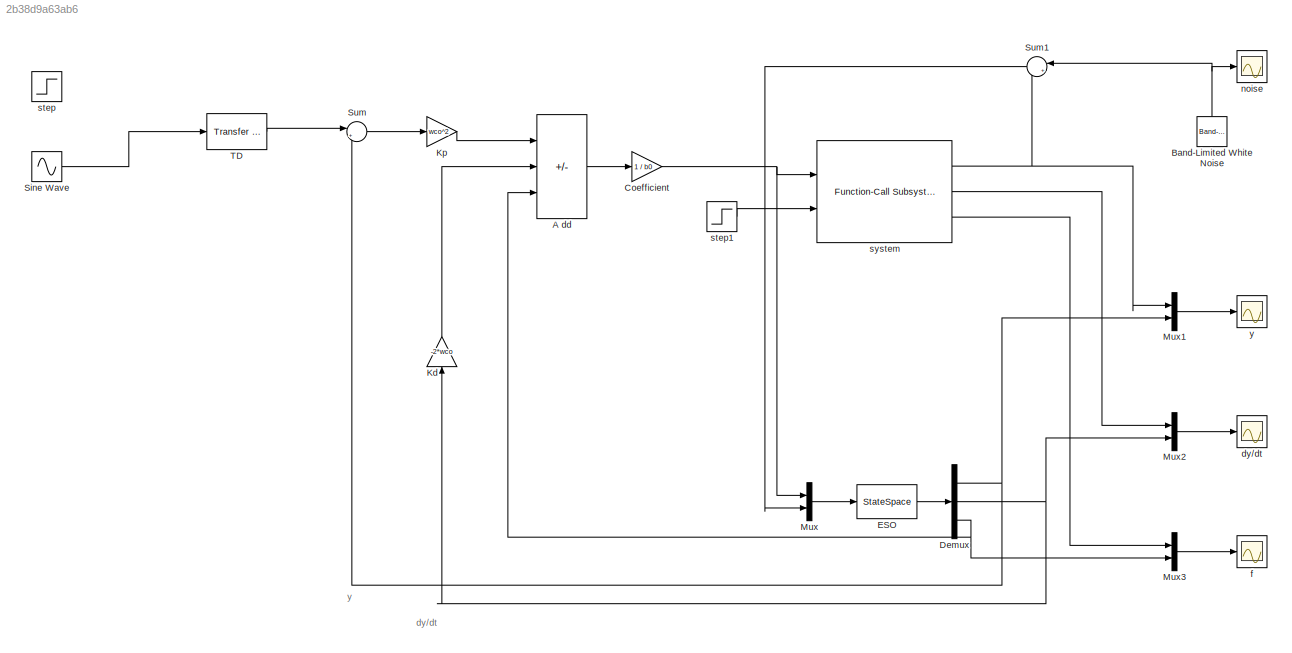
MODEL slx_2b38d9a63ab6
KIND model
CONFIG AbsTol = auto
CONFIG EnableMultiTasking = off
CONFIG FixedStep = 0.01
CONFIG MaxStep = auto
CONFIG MinStep = auto
CONFIG RelTol = 1e-3
CONFIG SampleTimeConstraint = Unconstrained
CONFIG SolverName = FixedStepAuto
CONFIG StartTime = 0.0
CONFIG StopTime = 10.0
WORKSPACE source: mxarray member
WORKSPACE wc = 5
BLOCK [Sum] A dd
  IconShape = rectangular
  Inputs = ++-
  Ports = [3, 1]
BLOCK [Reference] Band-Limited White Noise  REF=simulink/Sources/Band-Limited
White Noise
  NameLocation = right
  Ports = [0, 1]
  SourceBlock = simulink/Sources/Band-Limited\nWhite Noise
  SourceProductBaseCode = SL
  SourceType = Band-Limited White Noise.
BLOCK [Gain] Coefficient
  Gain = 1 / b0
BLOCK [Demux] Demux
  Outputs = 3
  Ports = [1, 3]
BLOCK [StateSpace] ESO
  A = [-3*wco 1 0; -3*wco^2 0 1; -wco^3 0 0]
  B = [0 3*wco; b0 3*wco^2; 0 wco^3]
  C = eye(3)
  D = [0 0; 0 0; 0 0]
  InitialCondition = 0
  Ports = [1, 1]
BLOCK [Gain] Kd
  Gain = -2*wco
  NameLocation = right
BLOCK [Gain] Kp
  Gain = wco^2
BLOCK [Mux] Mux
  DisplayOption = bar
  Inputs = 2
  Ports = [2, 1]
BLOCK [Mux] Mux1
  DisplayOption = bar
  Inputs = 2
  Ports = [2, 1]
BLOCK [Mux] Mux2
  DisplayOption = bar
  Inputs = 2
  Ports = [2, 1]
BLOCK [Mux] Mux3
  DisplayOption = bar
  Inputs = 2
  Ports = [2, 1]
BLOCK [Sin] Sine Wave
  Ports = [0, 1]
  SampleTime = 0
BLOCK [Sum] Sum
  Inputs = |+-
  Ports = [2, 1]
BLOCK [Sum] Sum1
  Inputs = |++
  NameLocation = top
  Ports = [2, 1]
BLOCK [Reference] TD  REF=simulink_extras/Additional
Linear/Transfer Fcn
(with initial outputs)
  Ports = [1, 1]
  SourceBlock = simulink_extras/Additional\nLinear/Transfer Fcn\n(with initial outputs)
  SourceProductBaseCode = SL
  SourceType = Transfer Function with Initial Outputs
BLOCK [Scope] dy//dt
  Floating = off
  NumInputPorts = 1
  Ports = [1]
  ScopeSpecificationString = Simulink.scopes.TimeScopeBlockCfg('CurrentConfiguration', extmgr.ConfigurationSet(extmgr.Configuration('Core','General UI',true,'FigureColor',[1 1 1]),extmgr.Configuration('Core','Source UI',true),extmgr.Configuration('Sources','WiredSimulink',true,'DataLoggingVariableName','ScopeData1'),extmgr.Configuration('Visuals','Time Domain',true,'SerializedDisplays',{struct('MinYLimReal','-31.36501','MaxYL...<+1746ch>
BLOCK [Scope] f
  Floating = off
  NumInputPorts = 1
  Ports = [1]
  ScopeSpecificationString = Simulink.scopes.TimeScopeBlockCfg('CurrentConfiguration', extmgr.ConfigurationSet(extmgr.Configuration('Core','General UI',true,'FigureColor',[1 1 1]),extmgr.Configuration('Core','Source UI',true),extmgr.Configuration('Sources','WiredSimulink',true,'DataLoggingVariableName','ScopeData2'),extmgr.Configuration('Visuals','Time Domain',true,'SerializedDisplays',{struct('MinYLimReal','-162.40222','MaxY...<+1882ch>
BLOCK [Scope] noise
  Floating = off
  NumInputPorts = 1
  Ports = [1]
  ScopeSpecificationString = Simulink.scopes.TimeScopeBlockCfg('CurrentConfiguration', extmgr.ConfigurationSet(extmgr.Configuration('Core','General UI',true,'FigureColor',[1 1 1]),extmgr.Configuration('Core','Source UI',true),extmgr.Configuration('Sources','WiredSimulink',true,'DataLoggingVariableName','ScopeData3'),extmgr.Configuration('Visuals','Time Domain',true,'SerializedDisplays',{struct('MinYLimReal','-0.83479','MaxYLi...<+1565ch>
BLOCK [Step] step
  After = 5
  SampleTime = 0
  Time = 0
BLOCK [Step] step1
  After = 10
  SampleTime = 0
  Time = 4
BLOCK [Reference] system  REF=cstblocks/Linear Parameter Varying/Function-Call
Subsystem
  Ports = [2, 3]
  SourceBlock = cstblocks/Linear Parameter Varying/Function-Call\nSubsystem
  SourceProductBaseCode = CT
  SourceType = SubSystem
BLOCK [Scope] y
  Floating = off
  NumInputPorts = 1
  Ports = [1]
  ScopeSpecificationString = Simulink.scopes.TimeScopeBlockCfg('CurrentConfiguration', extmgr.ConfigurationSet(extmgr.Configuration('Core','General UI',true,'FigureColor',[1 1 1]),extmgr.Configuration('Core','Source UI',true),extmgr.Configuration('Sources','WiredSimulink',true,'DataLoggingVariableName','ScopeData4'),extmgr.Configuration('Visuals','Time Domain',true,'SerializedDisplays',{struct('MinYLimReal','-1.45142','MaxYLi...<+1830ch>
ANNOTATION (root): y
ANNOTATION (root): dy/dt
LINE A dd:1 -> Coefficient:1
NET Band-Limited White Noise:1 -> Sum1:1, noise:1
NET Coefficient:1 -> Mux:1, system:1
NET Demux:1 -> Mux1:2, Sum:2
NET Demux:2 -> Kd:1, Mux2:2
NET Demux:3 -> A dd:3, Mux3:2
LINE ESO:1 -> Demux:1
LINE Kd:1 -> A dd:2
LINE Kp:1 -> A dd:1
LINE Mux1:1 -> y:1
LINE Mux2:1 -> dy//dt:1
LINE Mux3:1 -> f:1
LINE Mux:1 -> ESO:1
LINE Sine Wave:1 -> TD:1
LINE Sum1:1 -> Mux:2
LINE Sum:1 -> Kp:1
LINE TD:1 -> Sum:1
LINE step1:1 -> system:2
NET system:1 -> Mux1:1, Sum1:2
LINE system:2 -> Mux2:1
LINE system:3 -> Mux3:1
note: NET lines group one-source signal fan-out (src -> all destinations, sorted); 1:1 wires keep LINE
